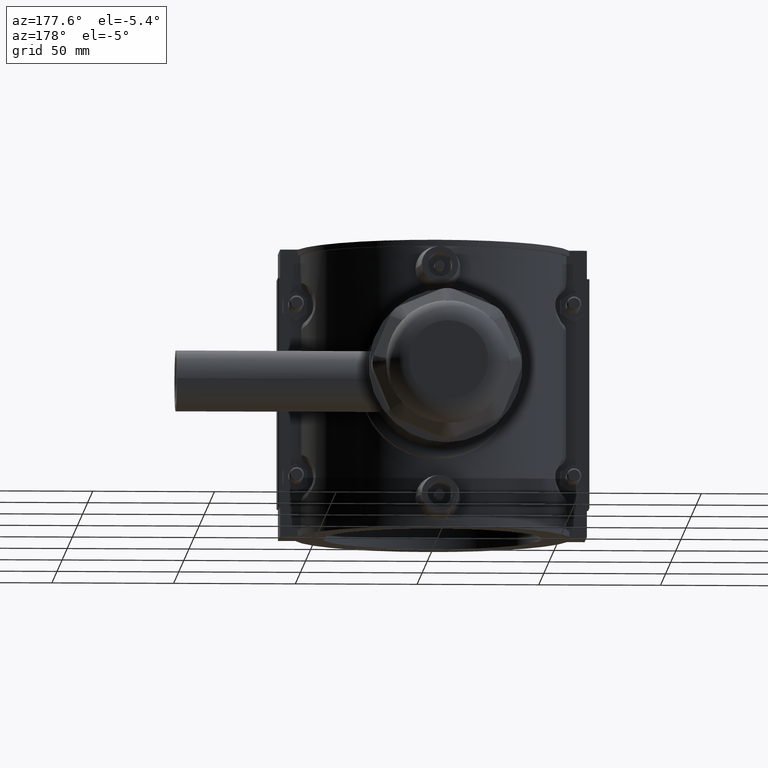
[diagram: clean part render]
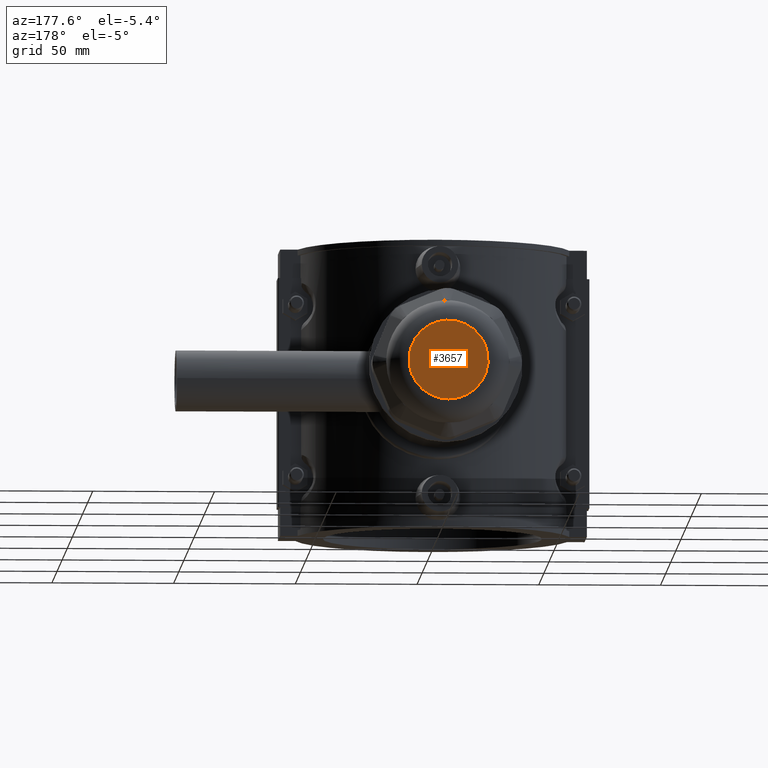
[diagram: same view with one face highlighted and labeled with its STEP entity id]
A machine part, auxiliary view. The second image highlights one B-rep face of the part: STEP entity #3657.
In plain terms, the highlighted planar face has unit normal (0, 1, 0).
Its self-contained STEP definition (entity closure, byte-faithful):
#679=PLANE('',#3899);
#813=CIRCLE('',#3898,16.2579868038568);
#1012=FACE_OUTER_BOUND('',#1242,.T.);
#1242=EDGE_LOOP('',(#2690));
#1654=VERTEX_POINT('',#6017);
#2055=EDGE_CURVE('',#1654,#1654,#813,.T.);
#2690=ORIENTED_EDGE('',*,*,#2055,.F.);
#3657=ADVANCED_FACE('',(#1012),#679,.T.);
#3898=AXIS2_PLACEMENT_3D('',#6018,#4349,#4350);
#3899=AXIS2_PLACEMENT_3D('',#6019,#4351,#4352);
#4349=DIRECTION('center_axis',(0.,-1.,-3.06161699786838E-16));
#4350=DIRECTION('ref_axis',(-6.12323399573677E-17,-2.73151414875497E-16,
1.));
#4351=DIRECTION('center_axis',(0.,1.,3.06161699786838E-16));
#4352=DIRECTION('ref_axis',(0.,0.,1.));
#6017=CARTESIAN_POINT('',(2.98654372498846E-15,159.,-16.2579868038567));
#6018=CARTESIAN_POINT('Origin',(0.,159.,3.49024337756996E-14));
#6019=CARTESIAN_POINT('Origin',(0.,159.,3.49024337756996E-14));